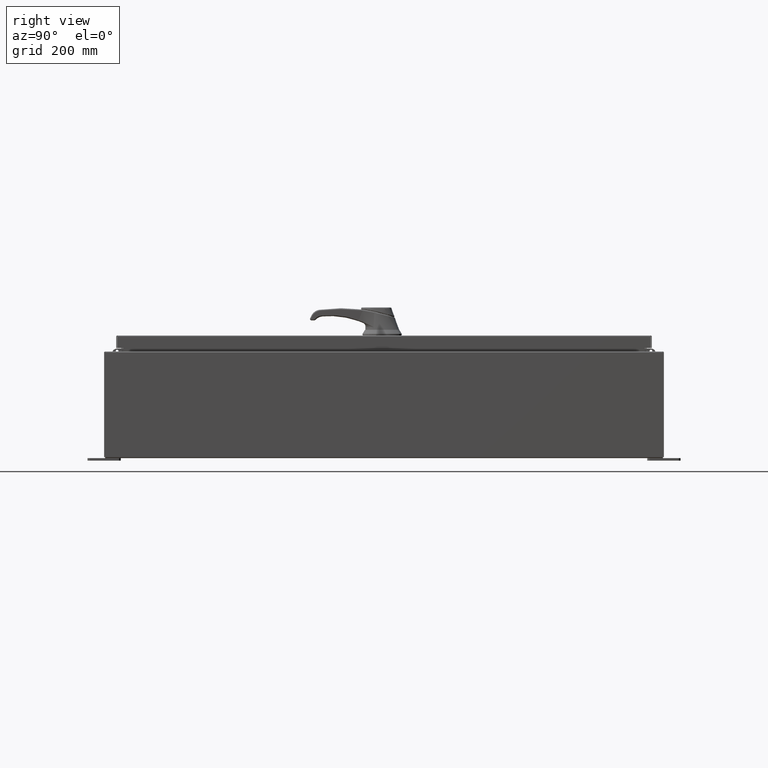
[diagram: clean part render]
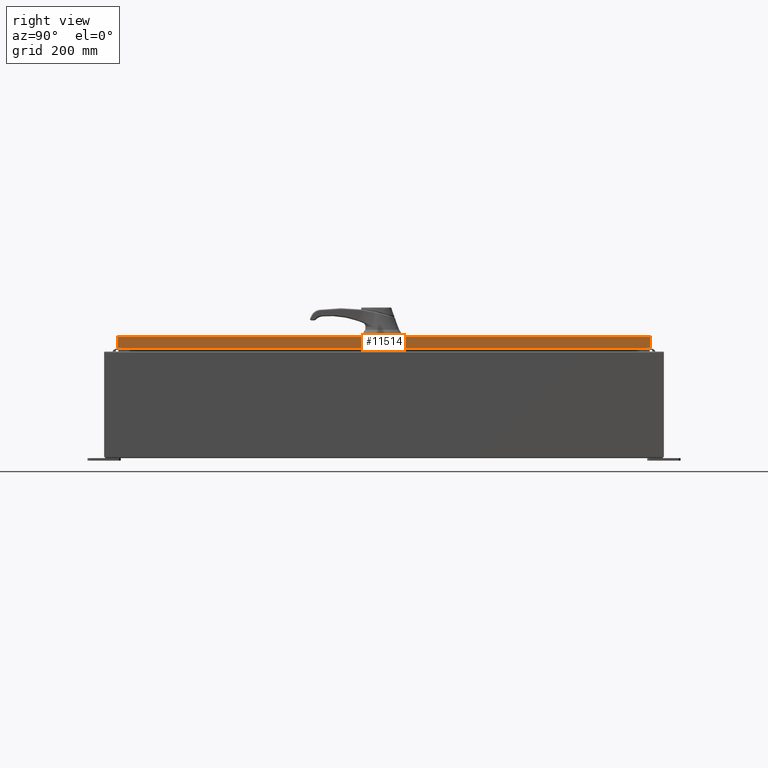
[diagram: same view with one face highlighted and labeled with its STEP entity id]
A machine part, right view. The second image highlights one B-rep face of the part: STEP entity #11514.
In plain terms, the highlighted planar face has unit normal (1, 0, 0).
Its self-contained STEP definition (entity closure, byte-faithful):
#1037 = EDGE_CURVE ( 'NONE', #87223, #55680, #87354, .T. ) ;
#3016 = DIRECTION ( 'NONE',  ( 0.0000000000000000000, -1.000000000000000000, 0.0000000000000000000 ) ) ;
#3585 = CARTESIAN_POINT ( 'NONE',  ( 14.07800000000000300, 0.0000000000000000000, 3.591222135455665100E-014 ) ) ;
#8871 = LINE ( 'NONE', #89883, #108405 ) ;
#10968 = VECTOR ( 'NONE', #3016, 39.37007874015748100 ) ;
#11514 = ADVANCED_FACE ( 'NONE', ( #51754 ), #23580, .T. ) ;
#15818 = EDGE_CURVE ( 'NONE', #87223, #43237, #34229, .T. ) ;
#16508 = ORIENTED_EDGE ( 'NONE', *, *, #15818, .F. ) ;
#19513 = EDGE_CURVE ( 'NONE', #55680, #53746, #8871, .T. ) ;
#23580 = PLANE ( 'NONE',  #100706 ) ;
#32421 = DIRECTION ( 'NONE',  ( -2.532419924601866100E-015, -6.982962677686265900E-015, 1.000000000000000000 ) ) ;
#33533 = DIRECTION ( 'NONE',  ( 2.532419924601866100E-015, 0.0000000000000000000, -1.000000000000000000 ) ) ;
#34229 = LINE ( 'NONE', #102172, #10968 ) ;
#42369 = EDGE_CURVE ( 'NONE', #43237, #53746, #79121, .T. ) ;
#42441 = CARTESIAN_POINT ( 'NONE',  ( 14.07800000000000300, -20.00515786437628000, -0.07469999999999980800 ) ) ;
#43237 = VERTEX_POINT ( 'NONE', #94279 ) ;
#46892 = CARTESIAN_POINT ( 'NONE',  ( 14.07800000000000300, -20.00515786437628000, -0.08770000000000008300 ) ) ;
#51754 = FACE_OUTER_BOUND ( 'NONE', #58659, .T. ) ;
#52590 = VECTOR ( 'NONE', #32421, 39.37007874015748100 ) ;
#53746 = VERTEX_POINT ( 'NONE', #46892 ) ;
#55680 = VERTEX_POINT ( 'NONE', #95279 ) ;
#57736 = VECTOR ( 'NONE', #86890, 39.37007874015748100 ) ;
#58659 = EDGE_LOOP ( 'NONE', ( #106997, #16508, #76018, #123632 ) ) ;
#73304 = CARTESIAN_POINT ( 'NONE',  ( 14.07800000000000500, 20.00515786437627200, -0.9376999999999997600 ) ) ;
#76018 = ORIENTED_EDGE ( 'NONE', *, *, #1037, .T. ) ;
#79121 = LINE ( 'NONE', #42441, #52590 ) ;
#86890 = DIRECTION ( 'NONE',  ( -2.532419924601866100E-015, -6.982962677686265900E-015, 1.000000000000000000 ) ) ;
#87223 = VERTEX_POINT ( 'NONE', #73304 ) ;
#87354 = LINE ( 'NONE', #117576, #57736 ) ;
#89883 = CARTESIAN_POINT ( 'NONE',  ( 14.07800000000000300, 0.0000000000000000000, -0.08770000000000008300 ) ) ;
#93120 = DIRECTION ( 'NONE',  ( 1.000000000000000000, 0.0000000000000000000, 2.532419924601866100E-015 ) ) ;
#94279 = CARTESIAN_POINT ( 'NONE',  ( 14.07800000000000500, -20.00515786437627200, -0.9376999999999997600 ) ) ;
#95279 = CARTESIAN_POINT ( 'NONE',  ( 14.07800000000000300, 20.00515786437626900, -0.08770000000000008300 ) ) ;
#100706 = AXIS2_PLACEMENT_3D ( 'NONE', #3585, #93120, #33533 ) ;
#102172 = CARTESIAN_POINT ( 'NONE',  ( 14.07800000000000500, -20.09400000000000800, -0.9376999999999997600 ) ) ;
#106997 = ORIENTED_EDGE ( 'NONE', *, *, #42369, .F. ) ;
#108405 = VECTOR ( 'NONE', #109871, 39.37007874015748100 ) ;
#109871 = DIRECTION ( 'NONE',  ( 0.0000000000000000000, -1.000000000000000000, 0.0000000000000000000 ) ) ;
#117576 = CARTESIAN_POINT ( 'NONE',  ( 14.07800000000000300, 20.00515786437626900, 1.756074920827180500E-013 ) ) ;
#123632 = ORIENTED_EDGE ( 'NONE', *, *, #19513, .T. ) ;